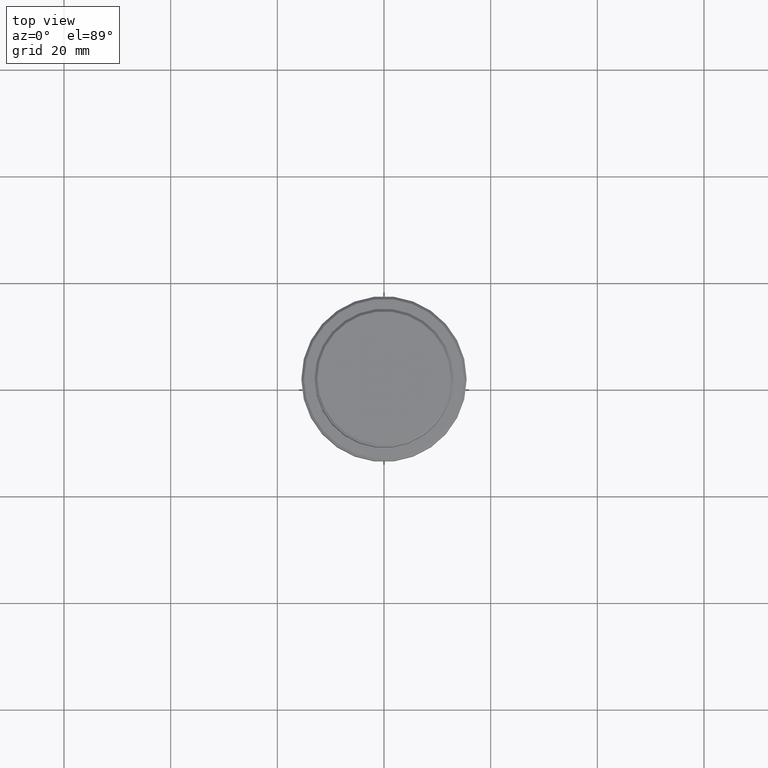
[diagram: clean part render]
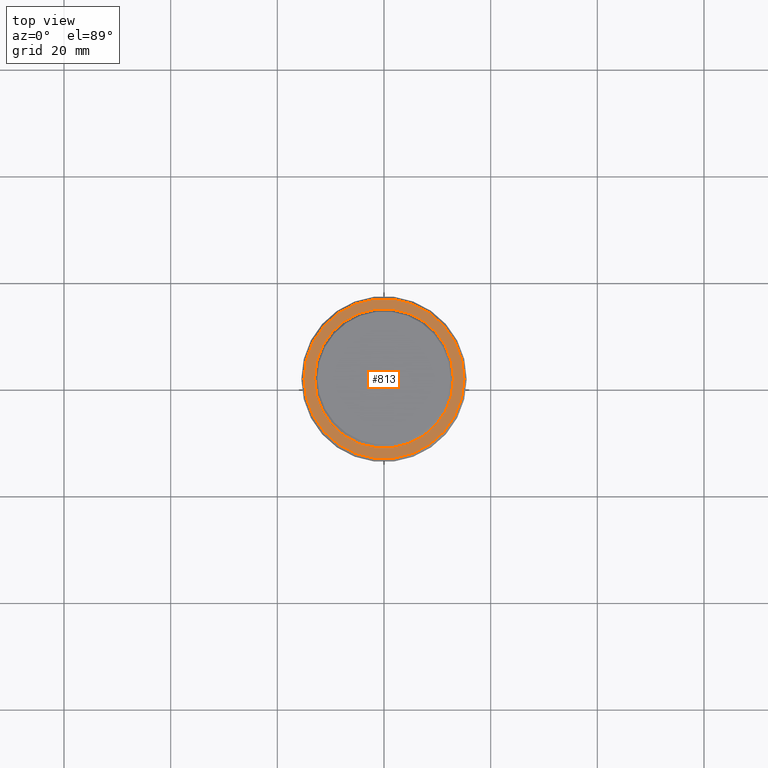
[diagram: same view with one face highlighted and labeled with its STEP entity id]
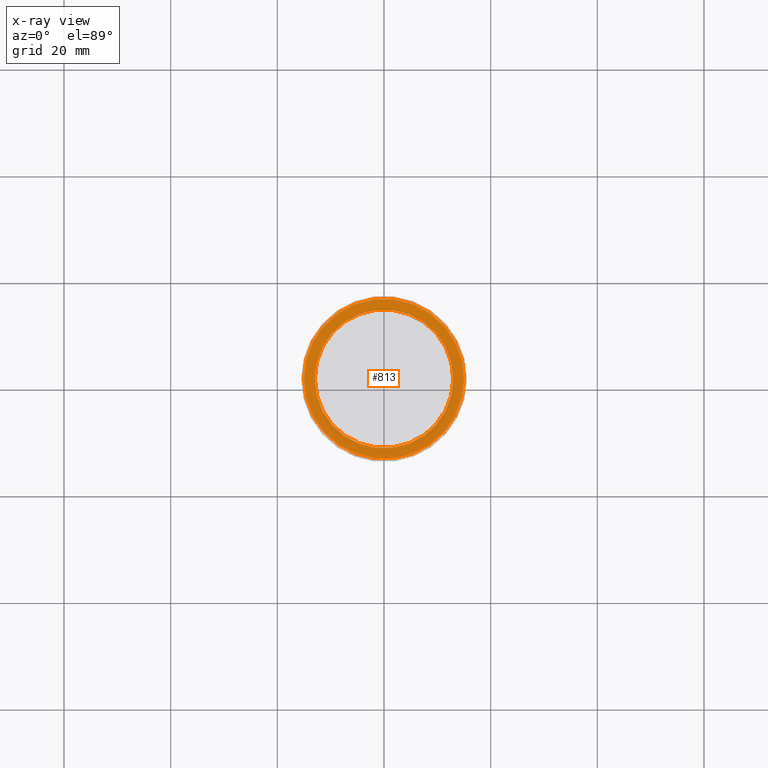
[diagram: x-ray of the same camera — body ghosted, the highlighted face saturated]
A machine part, top view. The second image highlights one B-rep face of the part: STEP entity #813.
The next image is the same camera in x-ray: the body ghosted, the highlighted face saturated — about 0% of this face is hidden behind the body in this view.
In plain terms, the highlighted planar face has unit normal (0, -0, 1).
Its self-contained STEP definition (entity closure, byte-faithful):
#54 = AXIS2_PLACEMENT_3D ( 'NONE', #1035, #902, #595 ) ;
#82 = EDGE_CURVE ( 'NONE', #733, #613, #710, .T. ) ;
#86 = CARTESIAN_POINT ( 'NONE',  ( 0.000000000000000000, 0.000000000000000000, -9.000000000000001776 ) ) ;
#137 = DIRECTION ( 'NONE',  ( 0.000000000000000000, -0.000000000000000000, 1.000000000000000000 ) ) ;
#145 = DIRECTION ( 'NONE',  ( -0.000000000000000000, -0.000000000000000000, 1.000000000000000000 ) ) ;
#150 = ORIENTED_EDGE ( 'NONE', *, *, #82, .T. ) ;
#242 = AXIS2_PLACEMENT_3D ( 'NONE', #816, #145, #580 ) ;
#251 = CARTESIAN_POINT ( 'NONE',  ( 0.000000000000000000, 12.49999999999999289, -9.000000000000001776 ) ) ;
#268 = AXIS2_PLACEMENT_3D ( 'NONE', #840, #312, #1261 ) ;
#307 = EDGE_CURVE ( 'NONE', #1326, #1214, #434, .T. ) ;
#312 = DIRECTION ( 'NONE',  ( 0.000000000000000000, 0.000000000000000000, -1.000000000000000000 ) ) ;
#352 = PLANE ( 'NONE',  #737 ) ;
#364 = DIRECTION ( 'NONE',  ( 1.000000000000000000, 0.000000000000000000, 0.000000000000000000 ) ) ;
#366 = CARTESIAN_POINT ( 'NONE',  ( 12.99999999999999467, 0.000000000000000000, -9.000000000000001776 ) ) ;
#380 = DIRECTION ( 'NONE',  ( 1.000000000000000000, 0.000000000000000000, 0.000000000000000000 ) ) ;
#434 = CIRCLE ( 'NONE', #54, 12.99999999999999467 ) ;
#440 = CIRCLE ( 'NONE', #1084, 14.99999999999998579 ) ;
#470 = CARTESIAN_POINT ( 'NONE',  ( 14.99999999999998579, 1.867586368699712587E-15, -9.000000000000001776 ) ) ;
#513 = DIRECTION ( 'NONE',  ( -0.000000000000000000, -0.000000000000000000, 1.000000000000000000 ) ) ;
#572 = FACE_BOUND ( 'NONE', #959, .T. ) ;
#580 = DIRECTION ( 'NONE',  ( 1.000000000000000000, 0.000000000000000000, 0.000000000000000000 ) ) ;
#595 = DIRECTION ( 'NONE',  ( 1.000000000000000000, 0.000000000000000000, 0.000000000000000000 ) ) ;
#613 = VERTEX_POINT ( 'NONE', #1417 ) ;
#710 = CIRCLE ( 'NONE', #242, 14.99999999999998579 ) ;
#733 = VERTEX_POINT ( 'NONE', #470 ) ;
#737 = AXIS2_PLACEMENT_3D ( 'NONE', #251, #137, #364 ) ;
#813 = ADVANCED_FACE ( 'NONE', ( #1332, #572 ), #352, .T. ) ;
#816 = CARTESIAN_POINT ( 'NONE',  ( 0.000000000000000000, 0.000000000000000000, -9.000000000000001776 ) ) ;
#840 = CARTESIAN_POINT ( 'NONE',  ( 0.000000000000000000, 0.000000000000000000, -9.000000000000001776 ) ) ;
#902 = DIRECTION ( 'NONE',  ( 0.000000000000000000, 0.000000000000000000, -1.000000000000000000 ) ) ;
#955 = EDGE_CURVE ( 'NONE', #1214, #1326, #1405, .T. ) ;
#959 = EDGE_LOOP ( 'NONE', ( #1168, #1116 ) ) ;
#1035 = CARTESIAN_POINT ( 'NONE',  ( 0.000000000000000000, 0.000000000000000000, -9.000000000000001776 ) ) ;
#1084 = AXIS2_PLACEMENT_3D ( 'NONE', #86, #513, #380 ) ;
#1104 = EDGE_LOOP ( 'NONE', ( #1208, #150 ) ) ;
#1116 = ORIENTED_EDGE ( 'NONE', *, *, #307, .T. ) ;
#1168 = ORIENTED_EDGE ( 'NONE', *, *, #955, .T. ) ;
#1208 = ORIENTED_EDGE ( 'NONE', *, *, #1402, .T. ) ;
#1214 = VERTEX_POINT ( 'NONE', #366 ) ;
#1261 = DIRECTION ( 'NONE',  ( 1.000000000000000000, 0.000000000000000000, 0.000000000000000000 ) ) ;
#1326 = VERTEX_POINT ( 'NONE', #1371 ) ;
#1332 = FACE_OUTER_BOUND ( 'NONE', #1104, .T. ) ;
#1371 = CARTESIAN_POINT ( 'NONE',  ( -12.99999999999999467, 1.592040838891558504E-15, -9.000000000000001776 ) ) ;
#1402 = EDGE_CURVE ( 'NONE', #613, #733, #440, .T. ) ;
#1405 = CIRCLE ( 'NONE', #268, 12.99999999999999467 ) ;
#1417 = CARTESIAN_POINT ( 'NONE',  ( -14.99999999999998579, 0.000000000000000000, -9.000000000000001776 ) ) ;